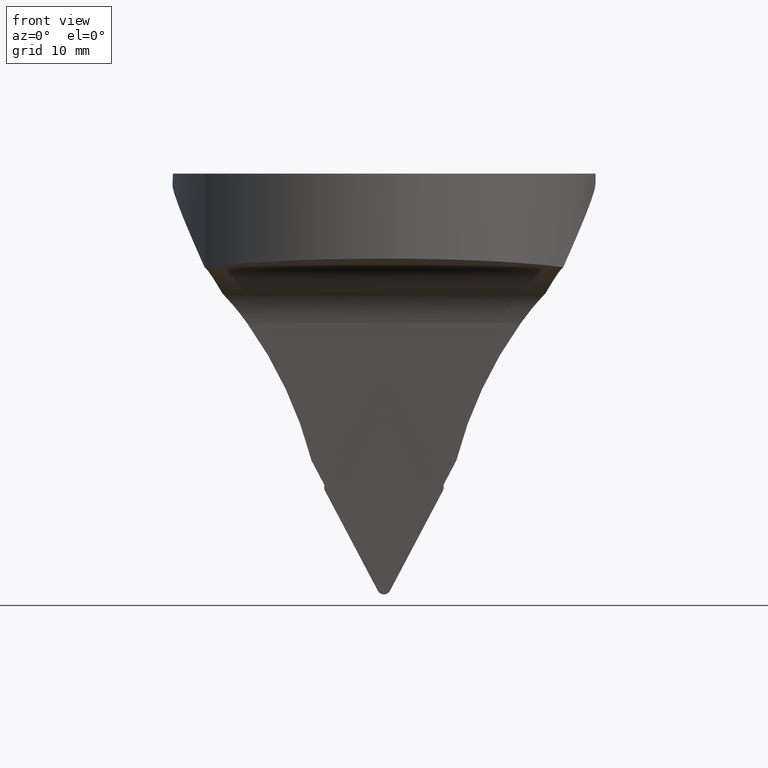
[diagram: clean part render]
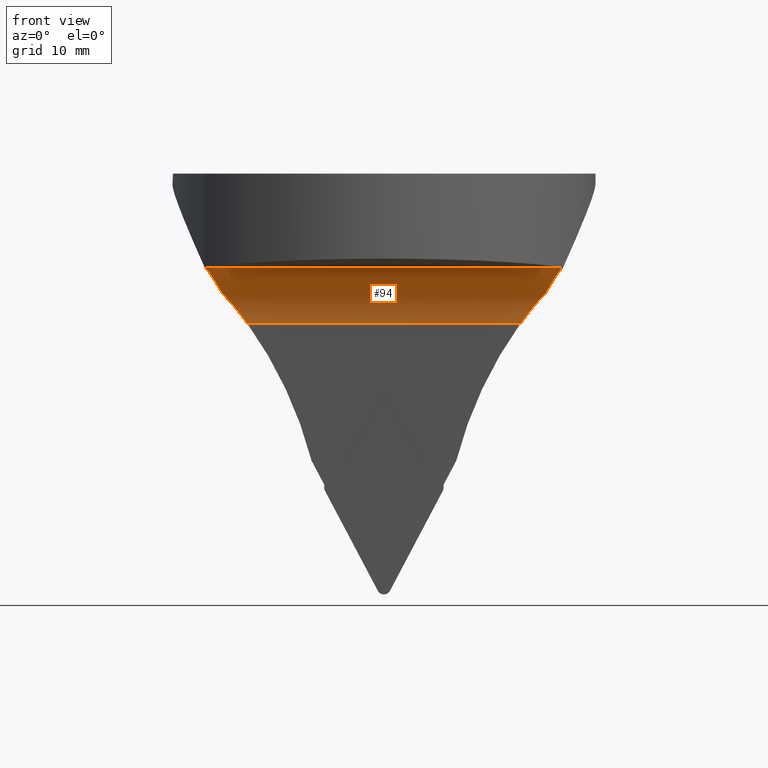
[diagram: same view with one face highlighted and labeled with its STEP entity id]
A machine part, front view. The second image highlights one B-rep face of the part: STEP entity #94.
In plain terms, the highlighted cylindrical surface (partial cylindrical patch) has radius 8 mm, axis along (1, -0, -0).
Its self-contained STEP definition (entity closure, byte-faithful):
#94=ADVANCED_FACE('',(#144),#145,.F.);
#144=FACE_OUTER_BOUND('',#203,.T.);
#145=CYLINDRICAL_SURFACE('',#204,8.0);
#203=EDGE_LOOP('',(#387,#388,#389,#390,#391,#392));
#204=AXIS2_PLACEMENT_3D('',#393,#394,#395);
#387=ORIENTED_EDGE('',*,*,#527,.T.);
#388=ORIENTED_EDGE('',*,*,#528,.T.);
#389=ORIENTED_EDGE('',*,*,#529,.T.);
#390=ORIENTED_EDGE('',*,*,#530,.T.);
#391=ORIENTED_EDGE('',*,*,#516,.T.);
#392=ORIENTED_EDGE('',*,*,#531,.T.);
#393=CARTESIAN_POINT('',(-1.34606108437416E-007,-13.7817430386128,-19.0617692242502));
#394=DIRECTION('',(1.0,-0.0,-0.0));
#395=DIRECTION('',(0.0,0.67559020761566,0.737277336810124));
#516=EDGE_CURVE('',#630,#628,#631,.T.);
#527=EDGE_CURVE('',#650,#651,#652,.T.);
#528=EDGE_CURVE('',#651,#653,#654,.T.);
#529=EDGE_CURVE('',#653,#655,#656,.T.);
#530=EDGE_CURVE('',#655,#630,#657,.T.);
#531=EDGE_CURVE('',#628,#650,#658,.T.);
#628=VERTEX_POINT('',#858);
#630=VERTEX_POINT('',#860);
#631=LINE('',#861,#862);
#650=VERTEX_POINT('',#915);
#651=VERTEX_POINT('',#916);
#652=ELLIPSE('',#917,9.01905557493074,8.0);
#653=VERTEX_POINT('',#918);
#654=LINE('',#919,#920);
#655=VERTEX_POINT('',#921);
#656=ELLIPSE('',#922,9.01905557493074,8.0);
#657=B_SPLINE_CURVE_WITH_KNOTS('',3,(#923,#924,#925,#926,#927,#928,#929,#930),.UNSPECIFIED.,.F.,.F.,(4,2,2,4),(9.44391554565034,10.084029051479,12.0765218287707,14.0690146060623),.UNSPECIFIED.);
#658=B_SPLINE_CURVE_WITH_KNOTS('',3,(#931,#932,#933,#934,#935,#936,#937,#938),.UNSPECIFIED.,.F.,.F.,(4,2,2,4),(40.2005737103557,42.1930664876474,44.185559264939,44.8256717155463),.UNSPECIFIED.);
#858=CARTESIAN_POINT('',(16.1708375293659,-5.90328101451511,-17.6725838029148));
#860=CARTESIAN_POINT('',(-16.1708375293657,-5.90328101451511,-17.6725838029147));
#861=CARTESIAN_POINT('',(-16.1708375293657,-5.90328101451511,-17.6725838029147));
#862=VECTOR('',#1041,32.3416750587316);
#915=CARTESIAN_POINT('',(19.0873445413524,-7.46434240141171,-14.1535669882893));
#916=CARTESIAN_POINT('',(21.1648110868223,-13.0844970966315,-11.0922116395163));
#917=AXIS2_PLACEMENT_3D('',#1066,#1067,#1068);
#918=CARTESIAN_POINT('',(-21.1648113560344,-13.0844970966315,-11.0922116395162));
#919=CARTESIAN_POINT('',(21.1648110868223,-13.0844970966315,-11.0922116395163));
#920=VECTOR('',#1069,42.3296224428567);
#921=CARTESIAN_POINT('',(-19.0873452236592,-7.4643429520256,-14.1535662795882));
#922=AXIS2_PLACEMENT_3D('',#1070,#1071,#1072);
#923=CARTESIAN_POINT('',(-19.0873452236592,-7.4643429520256,-14.1535662795882));
#924=CARTESIAN_POINT('',(-18.9493798930194,-7.35300651051105,-14.2968685947521));
#925=CARTESIAN_POINT('',(-18.8107164163539,-7.24655624650765,-14.4439536707851));
#926=CARTESIAN_POINT('',(-18.2396949488437,-6.83006751569863,-15.0626631470647));
#927=CARTESIAN_POINT('',(-17.8055716568433,-6.56516240251247,-15.5641120442477));
#928=CARTESIAN_POINT('',(-16.9628335759597,-6.14877948914645,-16.6019909257178));
#929=CARTESIAN_POINT('',(-16.5542115250607,-5.99745830642574,-17.1384778394811));
#930=CARTESIAN_POINT('',(-16.1708375293657,-5.90328101451511,-17.6725838029147));
#931=CARTESIAN_POINT('',(16.1708375293659,-5.90328101451511,-17.6725838029148));
#932=CARTESIAN_POINT('',(16.554211525061,-5.99745830642574,-17.1384778394812));
#933=CARTESIAN_POINT('',(16.9628335759599,-6.14877948914644,-16.6019909257179));
#934=CARTESIAN_POINT('',(17.8055716568436,-6.56516240251247,-15.5641120442478));
#935=CARTESIAN_POINT('',(18.239694948844,-6.83006751569863,-15.0626631470648));
#936=CARTESIAN_POINT('',(18.8107161874729,-7.24655607956745,-14.443953918781));
#937=CARTESIAN_POINT('',(18.9493794358429,-7.35300615953439,-14.2968690796796));
#938=CARTESIAN_POINT('',(19.0873445413524,-7.46434240141171,-14.1535669882893));
#1041=DIRECTION('',(1.0,0.0,0.0));
#1066=CARTESIAN_POINT('',(17.1421778192779,-13.7817430386128,-19.0617692242502));
#1067=DIRECTION('',(0.88701083317822,0.080181805228496,-0.454733614256499));
#1068=DIRECTION('',(0.461748613235036,-0.154027814752223,0.87353514551973));
#1069=DIRECTION('',(-1.0,0.0,0.0));
#1070=CARTESIAN_POINT('',(-17.14217808849,-13.7817430386128,-19.0617692242502));
#1071=DIRECTION('',(-0.887010833178223,0.0801818052284961,-0.454733614256494));
#1072=DIRECTION('',(-0.461748613235031,-0.154027814752224,0.873535145519732));